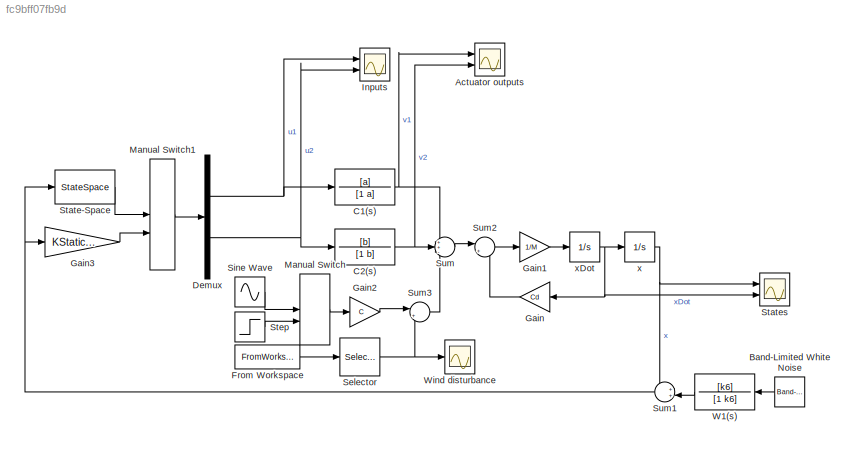
MODEL slx_fc9bff07fb9d
KIND model
CONFIG AbsTol = auto
CONFIG EnableMultiTasking = off
CONFIG FixedStep = auto
CONFIG MaxStep = 0.01
CONFIG MinStep = auto
CONFIG RelTol = 1e-3
CONFIG SampleTimeConstraint = Unconstrained
CONFIG SolverName = VariableStepAuto
CONFIG StartTime = 0.0
CONFIG StopTime = 50
BLOCK [Scope] Actuator outputs
  Floating = off
  NumInputPorts = 2
  Ports = [2]
  ScopeSpecificationString = Simulink.scopes.TimeScopeBlockCfg('CurrentConfiguration', extmgr.ConfigurationSet(extmgr.Configuration('Core','General UI',true),extmgr.Configuration('Core','Source UI',true),extmgr.Configuration('Sources','WiredSimulink',true,'DataLoggingVariableName','ScopeData1'),extmgr.Configuration('Visuals','Time Domain',true,'SerializedDisplays',{struct('MinYLimReal','-0.51672','MaxYLimReal','3.48452','YLab...<+1491ch>
BLOCK [Reference] Band-Limited White Noise  REF=simulink/Sources/Band-Limited
White Noise
  Commented = on
  Ports = [0, 1]
  SourceBlock = simulink/Sources/Band-Limited\nWhite Noise
  SourceProductBaseCode = SL
  SourceType = Band-Limited White Noise.
BLOCK [TransferFcn] C1(s)
  Denominator = [1 a]
  Numerator = [a]
BLOCK [TransferFcn] C2(s)
  Denominator = [1 b]
  Numerator = [b]
BLOCK [Demux] Demux
  Outputs = 2
  Ports = [1, 2]
BLOCK [FromWorkspace] From Workspace
  VariableName = windInput
BLOCK [Gain] Gain
  Gain = Cd
BLOCK [Gain] Gain1
  Gain = 1/M
BLOCK [Gain] Gain2
  Commented = on
  Gain = C
BLOCK [Gain] Gain3
  Gain = KStatic.D
BLOCK [Scope] Inputs
  Floating = off
  NumInputPorts = 2
  Ports = [2]
  ScopeSpecificationString = Simulink.scopes.TimeScopeBlockCfg('CurrentConfiguration', extmgr.ConfigurationSet(extmgr.Configuration('Core','General UI',true),extmgr.Configuration('Core','Source UI',true),extmgr.Configuration('Sources','WiredSimulink',true),extmgr.Configuration('Visuals','Time Domain',true,'SerializedDisplays',{struct('MinYLimReal','-0.90602','MaxYLimReal','8.15422','YLabelReal','Input signal','MinYLimMag','0....<+1478ch>
BLOCK [ManualSwitch] Manual Switch
  CurrentSetting = 0
BLOCK [ManualSwitch] Manual Switch1
  CurrentSetting = 0
BLOCK [Selector] Selector
  IndexOptions = Index vector (dialog)
  Indices = [1]
  InputPortWidth = 3
  OutputSizes = 1
  Ports = [1, 1]
BLOCK [Sin] Sine Wave
  Amplitude = 3
  Frequency = 1*2*pi
  Ports = [0, 1]
  SampleTime = 0
BLOCK [StateSpace] State-Space
  A = K.A
  B = K.B
  C = K.C
  D = K.D
  InitialCondition = 0
  Ports = [1, 1]
BLOCK [Scope] States
  Floating = off
  NumInputPorts = 2
  Ports = [2]
  ScopeSpecificationString = Simulink.scopes.TimeScopeBlockCfg('CurrentConfiguration', extmgr.ConfigurationSet(extmgr.Configuration('Core','General UI',true),extmgr.Configuration('Core','Source UI',true),extmgr.Configuration('Sources','WiredSimulink',true,'DataLoggingVariableName','ScopeData3'),extmgr.Configuration('Visuals','Time Domain',true,'SerializedDisplays',{struct('MinYLimReal','-10.28405','MaxYLimReal','1.14267','YLa...<+2085ch>
BLOCK [Step] Step
  SampleTime = 0
BLOCK [Sum] Sum
  Inputs = ++-
  Ports = [3, 1]
BLOCK [Sum] Sum1
  Inputs = ++|
  NameLocation = top
  Ports = [2, 1]
BLOCK [Sum] Sum2
  Inputs = |+-
  Ports = [2, 1]
BLOCK [Sum] Sum3
  Inputs = |++
  Ports = [2, 1]
BLOCK [TransferFcn] W1(s)
  Denominator = [1 k6]
  Numerator = [k6]
BLOCK [Scope] Wind disturbance
  Floating = off
  NumInputPorts = 1
  Ports = [1]
  ScopeSpecificationString = Simulink.scopes.TimeScopeBlockCfg('CurrentConfiguration', extmgr.ConfigurationSet(extmgr.Configuration('Core','General UI',true),extmgr.Configuration('Core','Source UI',true),extmgr.Configuration('Sources','WiredSimulink',true,'DataLoggingVariableName','ScopeData2'),extmgr.Configuration('Visuals','Time Domain',true,'SerializedDisplays',{struct('MinYLimReal','1.97895','MaxYLimReal','8.03561','YLabe...<+1517ch>
BLOCK [Integrator] x
  Ports = [1, 1]
BLOCK [Integrator] xDot
  Ports = [1, 1]
LINE Band-Limited White Noise:1 -> W1(s):1
NET C1(s):1 -> Actuator outputs:1, Sum:1
NET C2(s):1 -> Actuator outputs:2, Sum:2
NET Demux:1 -> C1(s):1, Inputs:1
NET Demux:2 -> C2(s):1, Inputs:2
LINE From Workspace:1 -> Selector:1
LINE Gain1:1 -> xDot:1
LINE Gain2:1 -> Sum3:1
LINE Gain3:1 -> Manual Switch1:2
LINE Gain:1 -> Sum2:2
LINE Manual Switch1:1 -> Demux:1
LINE Manual Switch:1 -> Gain2:1
NET Selector:1 -> Sum3:2, Wind disturbance:1
LINE Sine Wave:1 -> Manual Switch:1
LINE State-Space:1 -> Manual Switch1:1
LINE Step:1 -> Manual Switch:2
NET Sum1:1 -> Gain3:1, State-Space:1
LINE Sum2:1 -> Gain1:1
LINE Sum3:1 -> Sum:3
LINE Sum:1 -> Sum2:1
LINE W1(s):1 -> Sum1:2
NET x:1 -> States:1, Sum1:1
NET xDot:1 -> Gain:1, States:2, x:1
note: NET lines group one-source signal fan-out (src -> all destinations, sorted); 1:1 wires keep LINE
